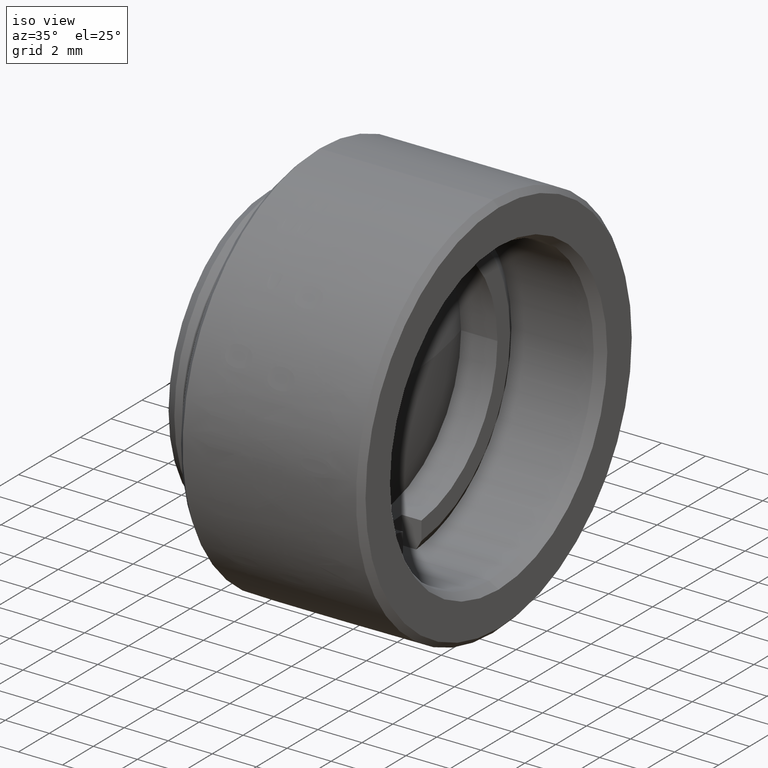
[diagram: clean part render]
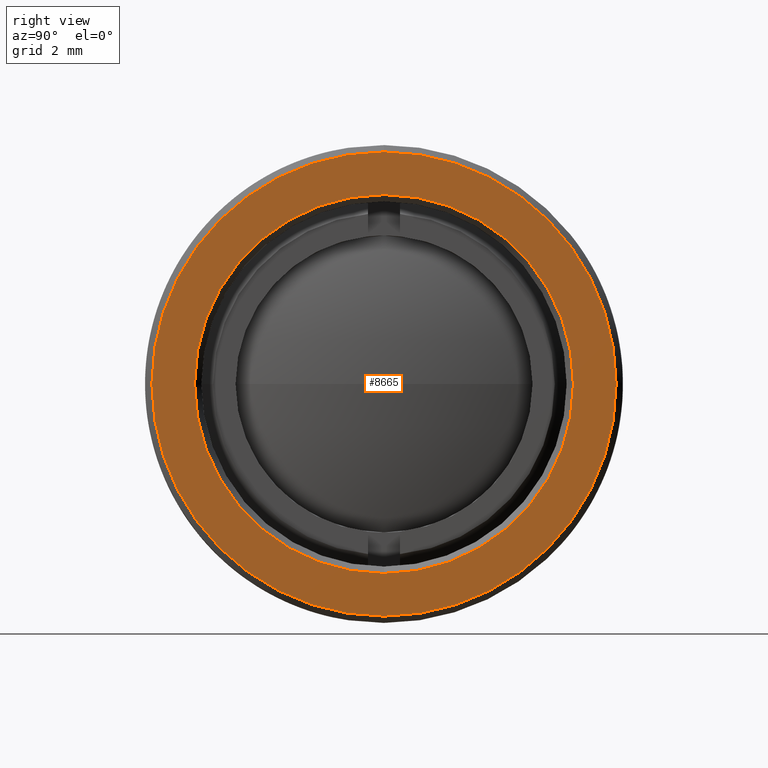
[diagram: tour spotlight — one face highlighted and labeled with its STEP entity id]
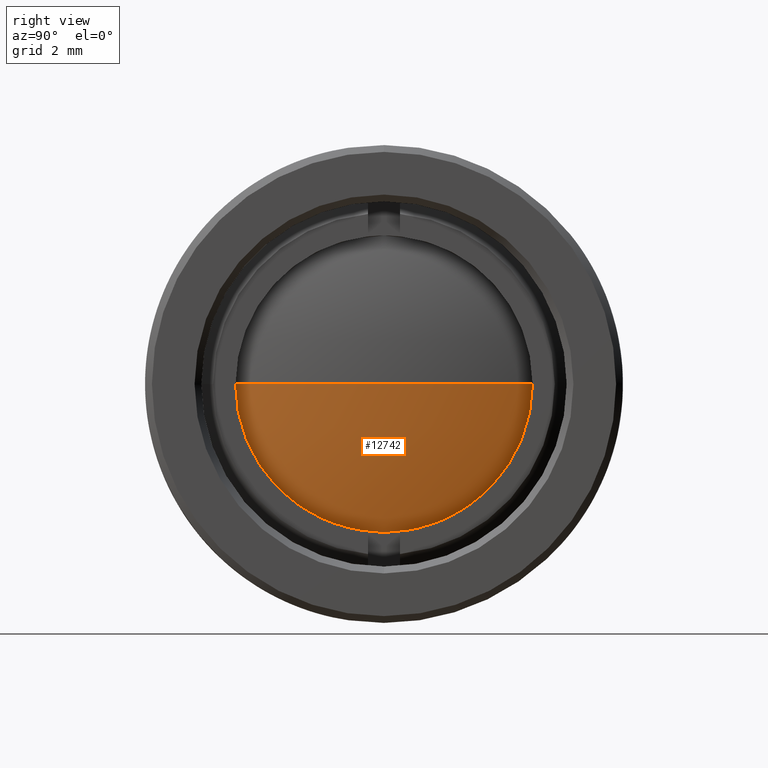
[diagram: tour spotlight — one face highlighted and labeled with its STEP entity id]
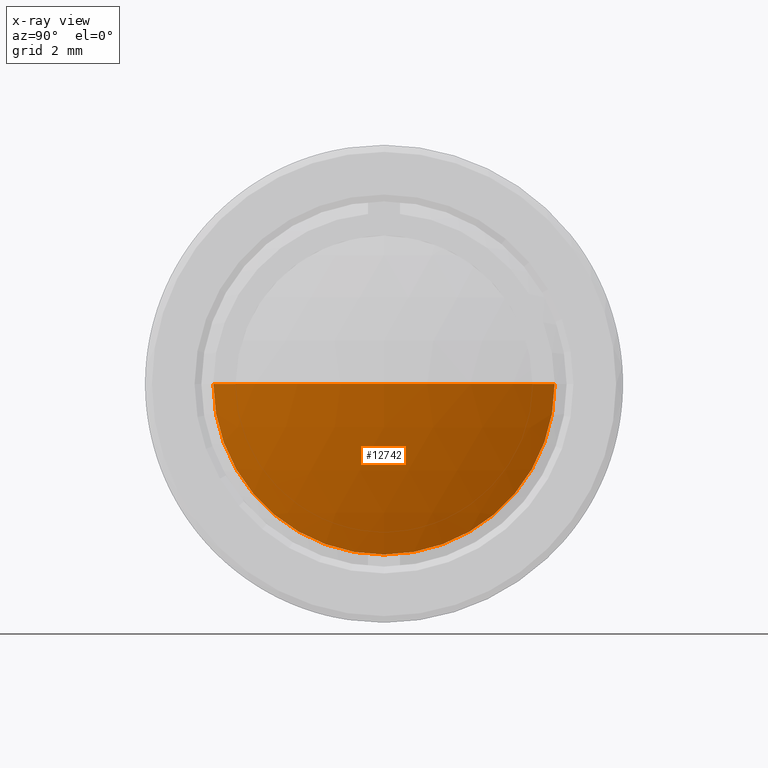
[diagram: x-ray of the same camera — body ghosted, this tour face saturated]
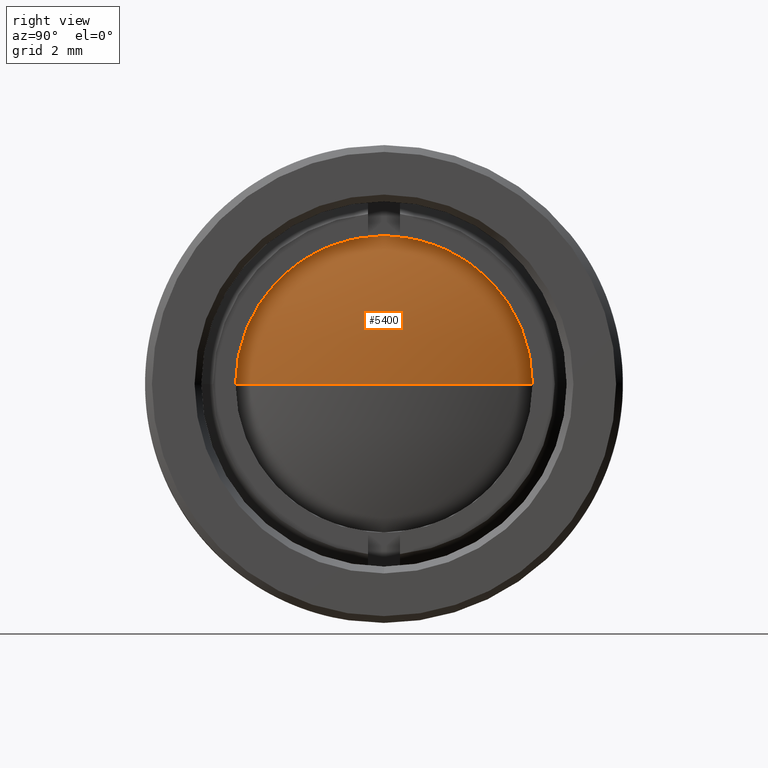
[diagram: tour spotlight — one face highlighted and labeled with its STEP entity id]
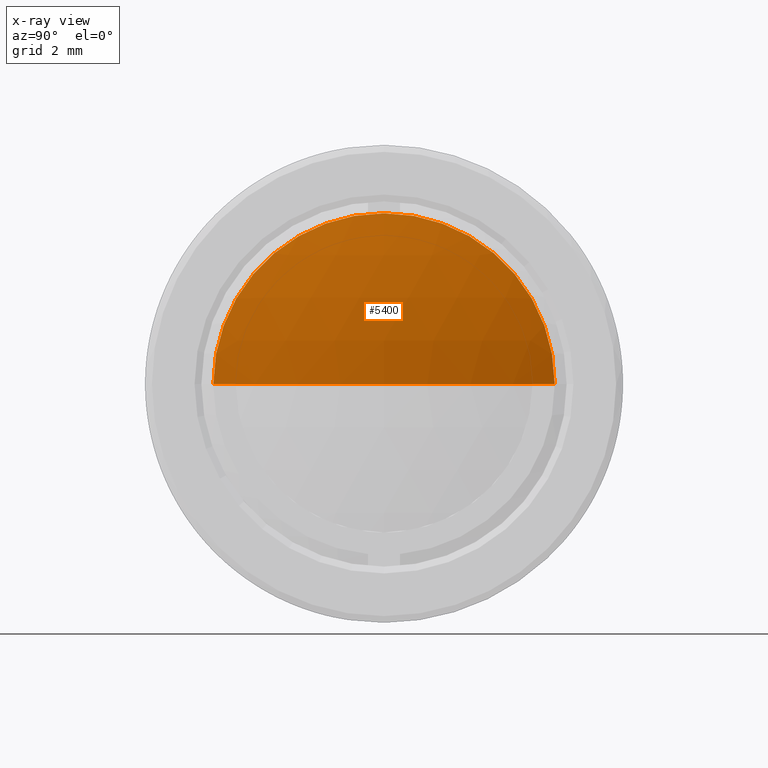
[diagram: x-ray of the same camera — body ghosted, this tour face saturated]
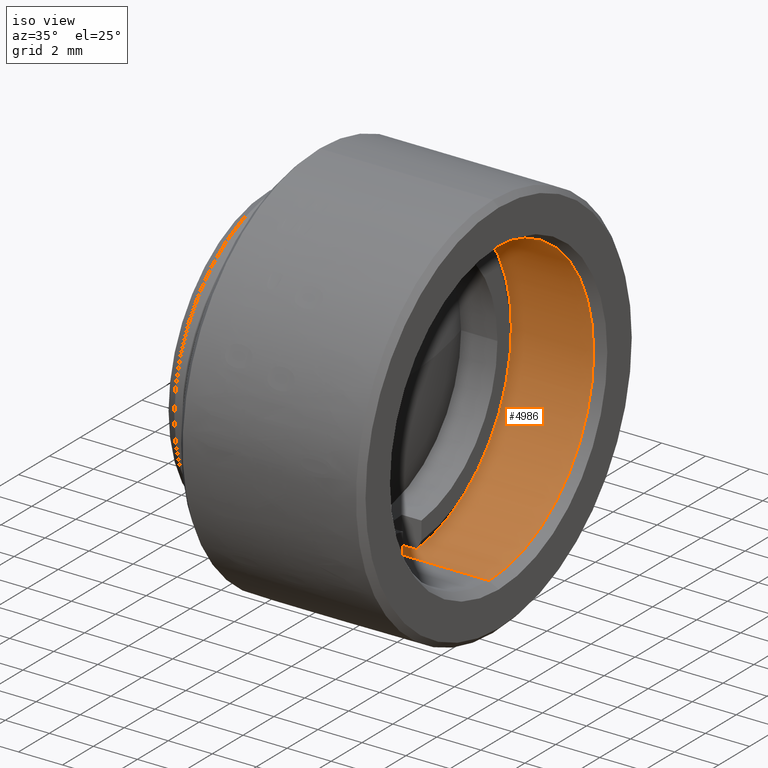
[diagram: tour spotlight — one face highlighted and labeled with its STEP entity id]
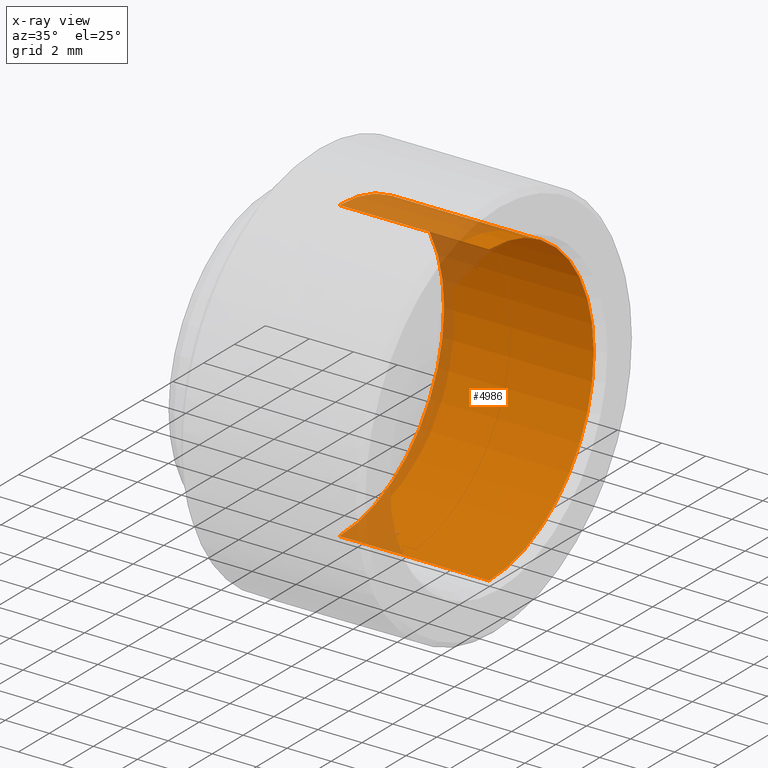
[diagram: x-ray of the same camera — body ghosted, this tour face saturated]
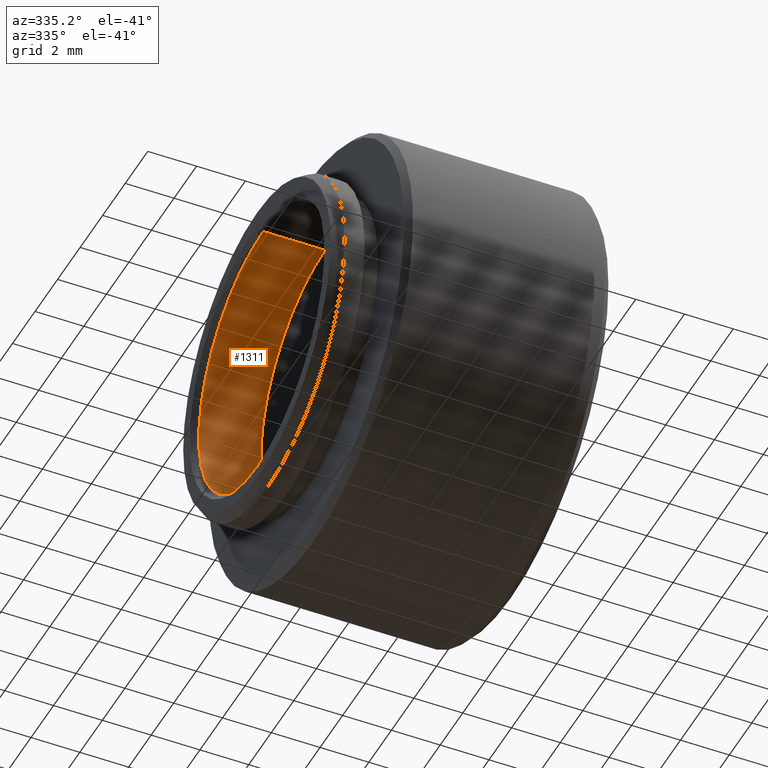
[diagram: tour spotlight — one face highlighted and labeled with its STEP entity id]
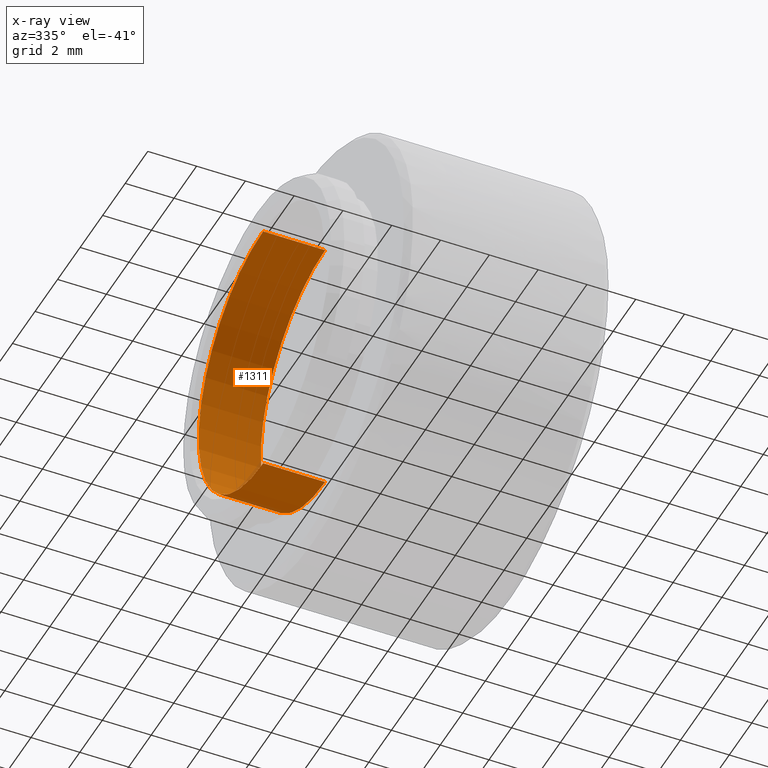
[diagram: x-ray of the same camera — body ghosted, this tour face saturated]
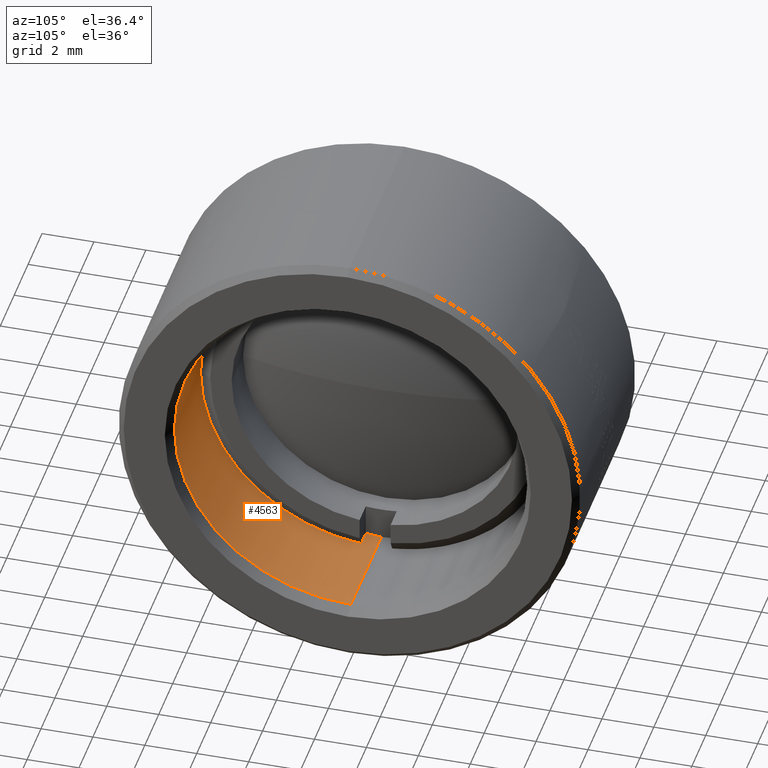
[diagram: tour spotlight — one face highlighted and labeled with its STEP entity id]
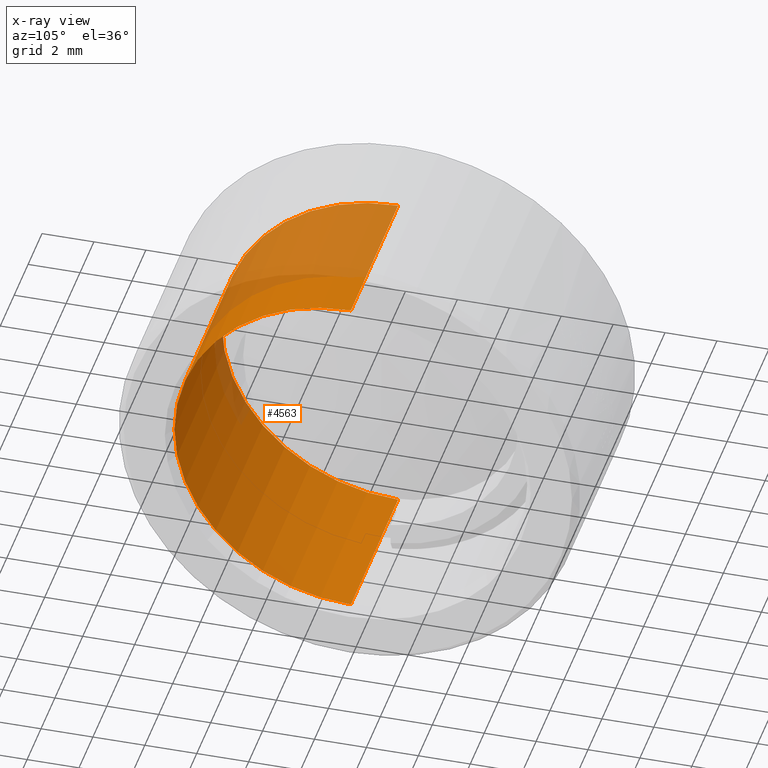
[diagram: x-ray of the same camera — body ghosted, this tour face saturated]
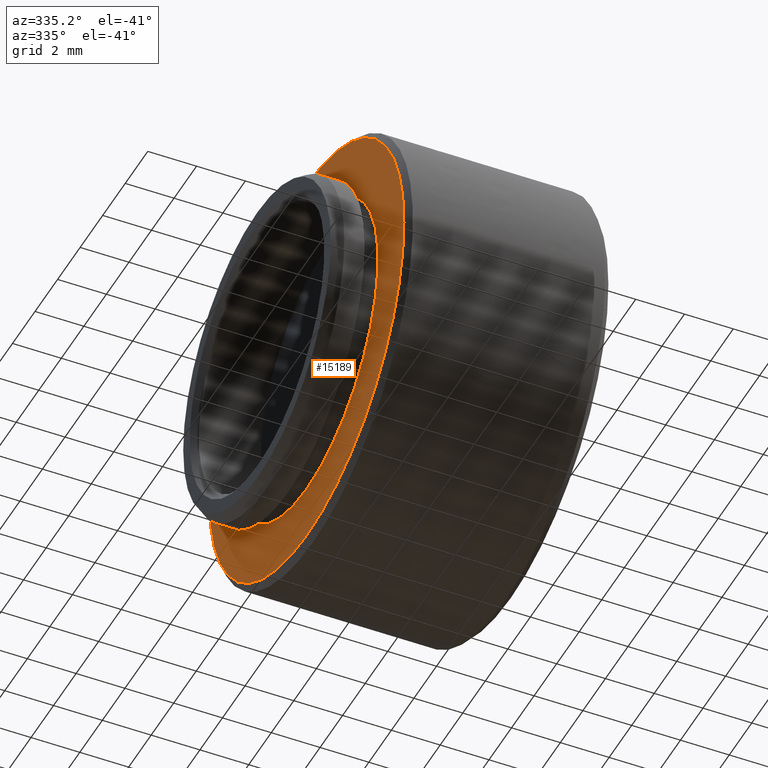
[diagram: tour spotlight — one face highlighted and labeled with its STEP entity id]
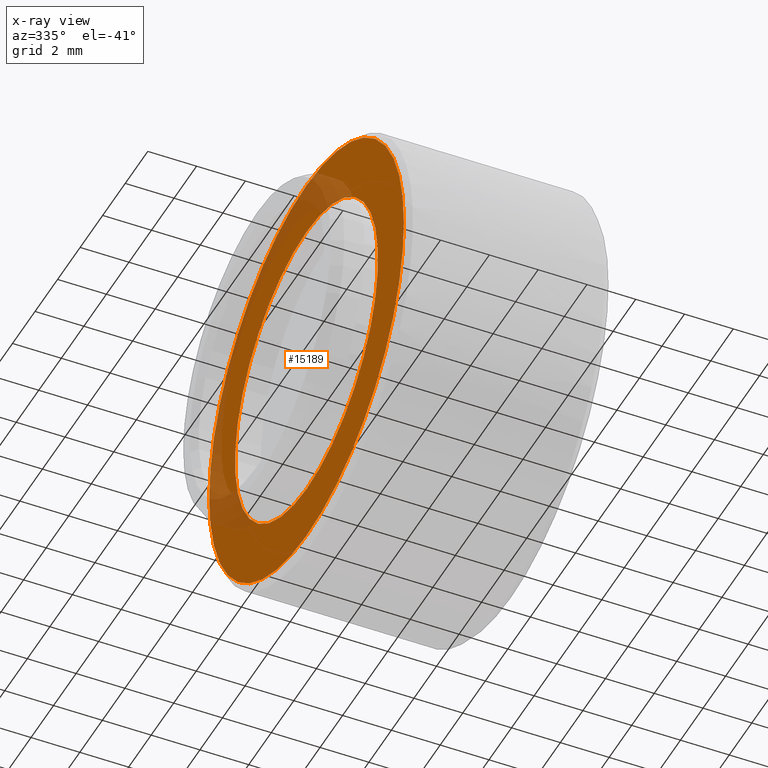
[diagram: x-ray of the same camera — body ghosted, this tour face saturated]
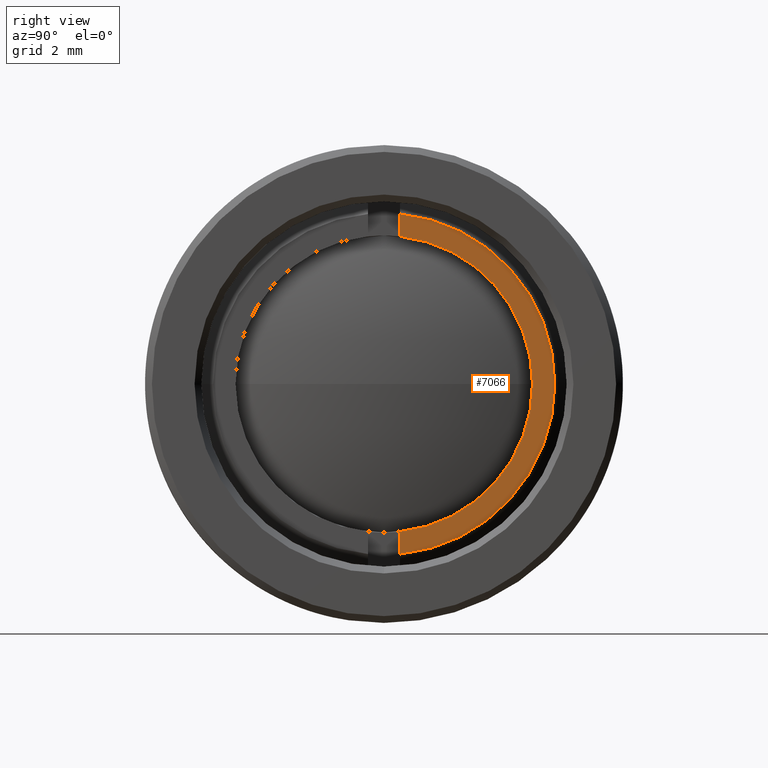
[diagram: tour spotlight — one face highlighted and labeled with its STEP entity id]
A machine part: a face-by-face anatomy tour. The part has 277 B-rep faces; the first image is the clean iso view, then the 8 largest visible faces are spotlighted one at a time (largest first), each with its STEP entity span.

Face 1 — right view, entity #8665. In plain terms, the highlighted planar face has unit normal (1, 0, -0).
Definition (entity closure, byte-faithful):
#58 = ORIENTED_EDGE ( 'NONE', *, *, #12486, .T. ) ;
#310 = AXIS2_PLACEMENT_3D ( 'NONE', #17529, #9246, #976 ) ;
#732 = CIRCLE ( 'NONE', #11438, 0.3400000000000000800 ) ;
#976 = DIRECTION ( 'NONE',  ( 0.0000000000000000000, 0.0000000000000000000, -1.000000000000000000 ) ) ;
#1913 = EDGE_LOOP ( 'NONE', ( #12680, #5407 ) ) ;
#2589 = FACE_OUTER_BOUND ( 'NONE', #12751, .T. ) ;
#4861 = DIRECTION ( 'NONE',  ( 1.000000000000000000, -0.0000000000000000000, -0.0000000000000000000 ) ) ;
#5407 = ORIENTED_EDGE ( 'NONE', *, *, #13251, .T. ) ;
#5629 = DIRECTION ( 'NONE',  ( -1.000000000000000000, 0.0000000000000000000, 0.0000000000000000000 ) ) ;
#5909 = PLANE ( 'NONE',  #6185 ) ;
#6185 = AXIS2_PLACEMENT_3D ( 'NONE', #14315, #15728, #7413 ) ;
#7399 = VERTEX_POINT ( 'NONE', #14909 ) ;
#7413 = DIRECTION ( 'NONE',  ( -0.0000000000000000000, 0.0000000000000000000, -1.000000000000000000 ) ) ;
#7529 = CARTESIAN_POINT ( 'NONE',  ( 0.2050000000000000400, 0.0000000000000000000, 0.0000000000000000000 ) ) ;
#8132 = CIRCLE ( 'NONE', #13645, 0.2775000000000001900 ) ;
#8496 = ORIENTED_EDGE ( 'NONE', *, *, #17340, .T. ) ;
#8665 = ADVANCED_FACE ( 'NONE', ( #2589, #16849 ), #5909, .T. ) ;
#8919 = DIRECTION ( 'NONE',  ( 0.0000000000000000000, 0.0000000000000000000, -1.000000000000000000 ) ) ;
#9023 = CARTESIAN_POINT ( 'NONE',  ( 0.2050000000000000400, 4.225031457058368500E-017, -0.3400000000000000800 ) ) ;
#9246 = DIRECTION ( 'NONE',  ( -1.000000000000000000, 0.0000000000000000000, 0.0000000000000000000 ) ) ;
#9256 = VERTEX_POINT ( 'NONE', #9575 ) ;
#9575 = CARTESIAN_POINT ( 'NONE',  ( 0.2050000000000000400, 0.0000000000000000000, -0.2775000000000001900 ) ) ;
#11180 = AXIS2_PLACEMENT_3D ( 'NONE', #13164, #4861, #14529 ) ;
#11438 = AXIS2_PLACEMENT_3D ( 'NONE', #7529, #17224, #8919 ) ;
#12486 = EDGE_CURVE ( 'NONE', #14745, #17827, #17029, .T. ) ;
#12680 = ORIENTED_EDGE ( 'NONE', *, *, #13030, .T. ) ;
#12751 = EDGE_LOOP ( 'NONE', ( #58, #8496 ) ) ;
#13030 = EDGE_CURVE ( 'NONE', #9256, #7399, #8132, .T. ) ;
#13164 = CARTESIAN_POINT ( 'NONE',  ( 0.2050000000000000400, 0.0000000000000000000, 0.0000000000000000000 ) ) ;
#13251 = EDGE_CURVE ( 'NONE', #7399, #9256, #14202, .T. ) ;
#13645 = AXIS2_PLACEMENT_3D ( 'NONE', #13928, #5629, #15310 ) ;
#13928 = CARTESIAN_POINT ( 'NONE',  ( 0.2050000000000000400, 0.0000000000000000000, 0.0000000000000000000 ) ) ;
#14202 = CIRCLE ( 'NONE', #310, 0.2775000000000001900 ) ;
#14315 = CARTESIAN_POINT ( 'NONE',  ( 0.2050000000000000400, 0.3499999999999999800, 0.0000000000000000000 ) ) ;
#14529 = DIRECTION ( 'NONE',  ( 0.0000000000000000000, 0.0000000000000000000, -1.000000000000000000 ) ) ;
#14745 = VERTEX_POINT ( 'NONE', #17343 ) ;
#14909 = CARTESIAN_POINT ( 'NONE',  ( 0.2050000000000000400, 3.398394867633907500E-017, 0.2775000000000001900 ) ) ;
#15310 = DIRECTION ( 'NONE',  ( 0.0000000000000000000, 0.0000000000000000000, -1.000000000000000000 ) ) ;
#15728 = DIRECTION ( 'NONE',  ( 1.000000000000000000, 0.0000000000000000000, -0.0000000000000000000 ) ) ;
#16849 = FACE_BOUND ( 'NONE', #1913, .T. ) ;
#17029 = CIRCLE ( 'NONE', #11180, 0.3400000000000000800 ) ;
#17224 = DIRECTION ( 'NONE',  ( 1.000000000000000000, -0.0000000000000000000, -0.0000000000000000000 ) ) ;
#17340 = EDGE_CURVE ( 'NONE', #17827, #14745, #732, .T. ) ;
#17343 = CARTESIAN_POINT ( 'NONE',  ( 0.2050000000000000400, 0.0000000000000000000, 0.3400000000000000800 ) ) ;
#17529 = CARTESIAN_POINT ( 'NONE',  ( 0.2050000000000000400, 0.0000000000000000000, 0.0000000000000000000 ) ) ;
#17827 = VERTEX_POINT ( 'NONE', #9023 ) ;

Face 2 — right view, entity #12742. An x-ray twin of the same camera follows (body ghosted, this face saturated) — the face is partly hidden behind the body. In plain terms, the highlighted spherical surface has radius 20.6 mm.
Definition (entity closure, byte-faithful):
#710 = CARTESIAN_POINT ( 'NONE',  ( -0.02425689957333913500, 2.489498125257398800E-017, -0.2500000000000000600 ) ) ;
#722 = ORIENTED_EDGE ( 'NONE', *, *, #10444, .T. ) ;
#951 = CARTESIAN_POINT ( 'NONE',  ( -0.02425689957333913500, 0.2500000000000002200, -3.061616997868385500E-017 ) ) ;
#1225 = CARTESIAN_POINT ( 'NONE',  ( -0.7957874015748031000, 0.0000000000000000000, 0.0000000000000000000 ) ) ;
#1467 = CIRCLE ( 'NONE', #4120, 0.8110236220472441000 ) ;
#1799 = DIRECTION ( 'NONE',  ( 0.0000000000000000000, -1.000000000000000000, 0.0000000000000000000 ) ) ;
#2376 = DIRECTION ( 'NONE',  ( -0.0000000000000000000, 0.0000000000000000000, 1.000000000000000000 ) ) ;
#2613 = DIRECTION ( 'NONE',  ( 0.0000000000000000000, 1.000000000000000000, -1.224646799147353200E-016 ) ) ;
#3128 = CARTESIAN_POINT ( 'NONE',  ( -0.7957874015748031000, 0.0000000000000000000, 0.0000000000000000000 ) ) ;
#3921 = VERTEX_POINT ( 'NONE', #710 ) ;
#4120 = AXIS2_PLACEMENT_3D ( 'NONE', #1225, #10874, #2613 ) ;
#4872 = VERTEX_POINT ( 'NONE', #12402 ) ;
#5285 = AXIS2_PLACEMENT_3D ( 'NONE', #3128, #10071, #1799 ) ;
#5390 = DIRECTION ( 'NONE',  ( 1.000000000000000000, 0.0000000000000000000, 0.0000000000000000000 ) ) ;
#6094 = AXIS2_PLACEMENT_3D ( 'NONE', #10629, #2376, #12032 ) ;
#6096 = ORIENTED_EDGE ( 'NONE', *, *, #14214, .F. ) ;
#6642 = ORIENTED_EDGE ( 'NONE', *, *, #11783, .T. ) ;
#7917 = SPHERICAL_SURFACE ( 'NONE', #5285, 0.8110236220472441000 ) ;
#7985 = DIRECTION ( 'NONE',  ( 1.000000000000000000, 0.0000000000000000000, 0.0000000000000000000 ) ) ;
#8263 = EDGE_CURVE ( 'NONE', #3921, #10397, #17112, .T. ) ;
#8604 = CIRCLE ( 'NONE', #9775, 0.2500000000000001100 ) ;
#9775 = AXIS2_PLACEMENT_3D ( 'NONE', #16307, #7985, #17688 ) ;
#10071 = DIRECTION ( 'NONE',  ( 0.0000000000000000000, 0.0000000000000000000, -1.000000000000000000 ) ) ;
#10397 = VERTEX_POINT ( 'NONE', #951 ) ;
#10444 = EDGE_CURVE ( 'NONE', #4872, #3921, #8604, .T. ) ;
#10629 = CARTESIAN_POINT ( 'NONE',  ( -0.7957874015748031000, 0.0000000000000000000, 0.0000000000000000000 ) ) ;
#10874 = DIRECTION ( 'NONE',  ( 0.0000000000000000000, -1.224646799147353200E-016, -1.000000000000000000 ) ) ;
#11178 = CARTESIAN_POINT ( 'NONE',  ( 0.01523622047244102000, -4.966087413865251400E-017, 0.0000000000000000000 ) ) ;
#11347 = VERTEX_POINT ( 'NONE', #11178 ) ;
#11551 = ORIENTED_EDGE ( 'NONE', *, *, #8263, .T. ) ;
#11783 = EDGE_CURVE ( 'NONE', #10397, #11347, #1467, .T. ) ;
#12032 = DIRECTION ( 'NONE',  ( 1.000000000000000000, 0.0000000000000000000, 0.0000000000000000000 ) ) ;
#12240 = CIRCLE ( 'NONE', #6094, 0.8110236220472441000 ) ;
#12402 = CARTESIAN_POINT ( 'NONE',  ( -0.02425689957333913500, -0.2500000000000002200, 0.0000000000000000000 ) ) ;
#12742 = ADVANCED_FACE ( 'NONE', ( #17675 ), #7917, .T. ) ;
#13681 = CARTESIAN_POINT ( 'NONE',  ( -0.02425689957333913500, 0.0000000000000000000, 0.0000000000000000000 ) ) ;
#14214 = EDGE_CURVE ( 'NONE', #4872, #11347, #12240, .T. ) ;
#15048 = EDGE_LOOP ( 'NONE', ( #722, #11551, #6642, #6096 ) ) ;
#15060 = DIRECTION ( 'NONE',  ( 0.0000000000000000000, -2.220446049250312600E-016, 1.000000000000000000 ) ) ;
#16307 = CARTESIAN_POINT ( 'NONE',  ( -0.02425689957333913500, 0.0000000000000000000, 0.0000000000000000000 ) ) ;
#17070 = AXIS2_PLACEMENT_3D ( 'NONE', #13681, #5390, #15060 ) ;
#17112 = CIRCLE ( 'NONE', #17070, 0.2500000000000001100 ) ;
#17675 = FACE_OUTER_BOUND ( 'NONE', #15048, .T. ) ;
#17688 = DIRECTION ( 'NONE',  ( 0.0000000000000000000, -2.220446049250312600E-016, 1.000000000000000000 ) ) ;

Face 3 — right view, entity #5400. An x-ray twin of the same camera follows (body ghosted, this face saturated) — the face is partly hidden behind the body. In plain terms, the highlighted spherical surface has radius 20.6 mm.
Definition (entity closure, byte-faithful):
#89 = FACE_OUTER_BOUND ( 'NONE', #797, .T. ) ;
#517 = SPHERICAL_SURFACE ( 'NONE', #5804, 0.8110236220472441000 ) ;
#797 = EDGE_LOOP ( 'NONE', ( #9106, #8052, #12663, #1360 ) ) ;
#951 = CARTESIAN_POINT ( 'NONE',  ( -0.02425689957333913500, 0.2500000000000002200, -3.061616997868385500E-017 ) ) ;
#1225 = CARTESIAN_POINT ( 'NONE',  ( -0.7957874015748031000, 0.0000000000000000000, 0.0000000000000000000 ) ) ;
#1360 = ORIENTED_EDGE ( 'NONE', *, *, #14214, .T. ) ;
#1467 = CIRCLE ( 'NONE', #4120, 0.8110236220472441000 ) ;
#1545 = CARTESIAN_POINT ( 'NONE',  ( -0.02425689957333913500, 0.0000000000000000000, 0.0000000000000000000 ) ) ;
#2376 = DIRECTION ( 'NONE',  ( -0.0000000000000000000, 0.0000000000000000000, 1.000000000000000000 ) ) ;
#2613 = DIRECTION ( 'NONE',  ( 0.0000000000000000000, 1.000000000000000000, -1.224646799147353200E-016 ) ) ;
#2945 = DIRECTION ( 'NONE',  ( 0.0000000000000000000, -2.220446049250312600E-016, 1.000000000000000000 ) ) ;
#4048 = CIRCLE ( 'NONE', #15244, 0.2500000000000001100 ) ;
#4120 = AXIS2_PLACEMENT_3D ( 'NONE', #1225, #10874, #2613 ) ;
#4646 = DIRECTION ( 'NONE',  ( 1.000000000000000000, 0.0000000000000000000, 0.0000000000000000000 ) ) ;
#4872 = VERTEX_POINT ( 'NONE', #12402 ) ;
#5400 = ADVANCED_FACE ( 'NONE', ( #89 ), #517, .T. ) ;
#5804 = AXIS2_PLACEMENT_3D ( 'NONE', #10424, #6265, #11819 ) ;
#6094 = AXIS2_PLACEMENT_3D ( 'NONE', #10629, #2376, #12032 ) ;
#6265 = DIRECTION ( 'NONE',  ( 0.0000000000000000000, 0.0000000000000000000, -1.000000000000000000 ) ) ;
#8052 = ORIENTED_EDGE ( 'NONE', *, *, #12260, .T. ) ;
#8468 = EDGE_CURVE ( 'NONE', #9154, #4872, #8877, .T. ) ;
#8877 = CIRCLE ( 'NONE', #9311, 0.2500000000000001100 ) ;
#9106 = ORIENTED_EDGE ( 'NONE', *, *, #11783, .F. ) ;
#9154 = VERTEX_POINT ( 'NONE', #14782 ) ;
#9311 = AXIS2_PLACEMENT_3D ( 'NONE', #12936, #4646, #14313 ) ;
#10397 = VERTEX_POINT ( 'NONE', #951 ) ;
#10424 = CARTESIAN_POINT ( 'NONE',  ( -0.7957874015748031000, 0.0000000000000000000, 0.0000000000000000000 ) ) ;
#10629 = CARTESIAN_POINT ( 'NONE',  ( -0.7957874015748031000, 0.0000000000000000000, 0.0000000000000000000 ) ) ;
#10874 = DIRECTION ( 'NONE',  ( 0.0000000000000000000, -1.224646799147353200E-016, -1.000000000000000000 ) ) ;
#11178 = CARTESIAN_POINT ( 'NONE',  ( 0.01523622047244102000, -4.966087413865251400E-017, 0.0000000000000000000 ) ) ;
#11211 = DIRECTION ( 'NONE',  ( 1.000000000000000000, 0.0000000000000000000, 0.0000000000000000000 ) ) ;
#11347 = VERTEX_POINT ( 'NONE', #11178 ) ;
#11783 = EDGE_CURVE ( 'NONE', #10397, #11347, #1467, .T. ) ;
#11819 = DIRECTION ( 'NONE',  ( 0.0000000000000000000, -1.000000000000000000, 0.0000000000000000000 ) ) ;
#12032 = DIRECTION ( 'NONE',  ( 1.000000000000000000, 0.0000000000000000000, 0.0000000000000000000 ) ) ;
#12240 = CIRCLE ( 'NONE', #6094, 0.8110236220472441000 ) ;
#12260 = EDGE_CURVE ( 'NONE', #10397, #9154, #4048, .T. ) ;
#12402 = CARTESIAN_POINT ( 'NONE',  ( -0.02425689957333913500, -0.2500000000000002200, 0.0000000000000000000 ) ) ;
#12663 = ORIENTED_EDGE ( 'NONE', *, *, #8468, .T. ) ;
#12936 = CARTESIAN_POINT ( 'NONE',  ( -0.02425689957333913500, 0.0000000000000000000, 0.0000000000000000000 ) ) ;
#14214 = EDGE_CURVE ( 'NONE', #4872, #11347, #12240, .T. ) ;
#14313 = DIRECTION ( 'NONE',  ( 0.0000000000000000000, -2.220446049250312600E-016, 1.000000000000000000 ) ) ;
#14782 = CARTESIAN_POINT ( 'NONE',  ( -0.02425689957333913500, -5.551115123125782700E-017, 0.2500000000000000600 ) ) ;
#15244 = AXIS2_PLACEMENT_3D ( 'NONE', #1545, #11211, #2945 ) ;

Face 4 — iso view, entity #4986. An x-ray twin of the same camera follows (body ghosted, this face saturated) — the face is partly hidden behind the body. In plain terms, the highlighted cylindrical surface (partial cylindrical patch) has radius 6.7945 mm, axis along (1, -0, -0).
Definition (entity closure, byte-faithful):
#109 = CYLINDRICAL_SURFACE ( 'NONE', #8925, 0.2675000000000000200 ) ;
#141 = CARTESIAN_POINT ( 'NONE',  ( 0.2050000000000000400, 0.0000000000000000000, 0.0000000000000000000 ) ) ;
#171 = CARTESIAN_POINT ( 'NONE',  ( 0.1876794919243109400, 3.275930187719170000E-017, 0.2675000000000000200 ) ) ;
#1982 = CARTESIAN_POINT ( 'NONE',  ( 0.2050000000000000400, 0.0000000000000000000, -0.2675000000000000200 ) ) ;
#2310 = EDGE_LOOP ( 'NONE', ( #9455, #16572, #14114, #6759 ) ) ;
#2705 = CARTESIAN_POINT ( 'NONE',  ( 0.1876794919243109400, 0.0000000000000000000, 0.0000000000000000000 ) ) ;
#3272 = EDGE_CURVE ( 'NONE', #8558, #8965, #11800, .T. ) ;
#3364 = DIRECTION ( 'NONE',  ( 1.000000000000000000, -0.0000000000000000000, -0.0000000000000000000 ) ) ;
#4088 = DIRECTION ( 'NONE',  ( 0.0000000000000000000, 0.0000000000000000000, -1.000000000000000000 ) ) ;
#4092 = EDGE_CURVE ( 'NONE', #7568, #7174, #6618, .T. ) ;
#4986 = ADVANCED_FACE ( 'NONE', ( #7873 ), #109, .F. ) ;
#5527 = VECTOR ( 'NONE', #5905, 39.37007874015748100 ) ;
#5625 = DIRECTION ( 'NONE',  ( 0.0000000000000000000, 0.0000000000000000000, -1.000000000000000000 ) ) ;
#5836 = CARTESIAN_POINT ( 'NONE',  ( -0.07999999999999990500, 3.275930187719170000E-017, 0.2675000000000000200 ) ) ;
#5905 = DIRECTION ( 'NONE',  ( 1.000000000000000000, -0.0000000000000000000, -0.0000000000000000000 ) ) ;
#6390 = LINE ( 'NONE', #10086, #5527 ) ;
#6613 = AXIS2_PLACEMENT_3D ( 'NONE', #2705, #12362, #4088 ) ;
#6618 = CIRCLE ( 'NONE', #6613, 0.2675000000000000200 ) ;
#6759 = ORIENTED_EDGE ( 'NONE', *, *, #4092, .T. ) ;
#7174 = VERTEX_POINT ( 'NONE', #171 ) ;
#7379 = CARTESIAN_POINT ( 'NONE',  ( -0.07999999999999990500, 0.0000000000000000000, 0.0000000000000000000 ) ) ;
#7568 = VERTEX_POINT ( 'NONE', #11145 ) ;
#7873 = FACE_OUTER_BOUND ( 'NONE', #2310, .T. ) ;
#8558 = VERTEX_POINT ( 'NONE', #14435 ) ;
#8768 = DIRECTION ( 'NONE',  ( 0.0000000000000000000, 0.0000000000000000000, -1.000000000000000000 ) ) ;
#8925 = AXIS2_PLACEMENT_3D ( 'NONE', #141, #9794, #5625 ) ;
#8965 = VERTEX_POINT ( 'NONE', #5836 ) ;
#9455 = ORIENTED_EDGE ( 'NONE', *, *, #14544, .F. ) ;
#9794 = DIRECTION ( 'NONE',  ( 1.000000000000000000, -0.0000000000000000000, -0.0000000000000000000 ) ) ;
#9876 = LINE ( 'NONE', #1982, #16803 ) ;
#10086 = CARTESIAN_POINT ( 'NONE',  ( 0.2050000000000000400, 3.275930187719170000E-017, 0.2675000000000000200 ) ) ;
#11145 = CARTESIAN_POINT ( 'NONE',  ( 0.1876794919243109400, 0.0000000000000000000, -0.2675000000000000200 ) ) ;
#11800 = CIRCLE ( 'NONE', #16581, 0.2675000000000000200 ) ;
#12362 = DIRECTION ( 'NONE',  ( 1.000000000000000000, 0.0000000000000000000, 0.0000000000000000000 ) ) ;
#12805 = EDGE_CURVE ( 'NONE', #8558, #7568, #9876, .T. ) ;
#14114 = ORIENTED_EDGE ( 'NONE', *, *, #12805, .T. ) ;
#14435 = CARTESIAN_POINT ( 'NONE',  ( -0.07999999999999990500, 0.0000000000000000000, -0.2675000000000000200 ) ) ;
#14544 = EDGE_CURVE ( 'NONE', #8965, #7174, #6390, .T. ) ;
#16572 = ORIENTED_EDGE ( 'NONE', *, *, #3272, .F. ) ;
#16581 = AXIS2_PLACEMENT_3D ( 'NONE', #7379, #17068, #8768 ) ;
#16803 = VECTOR ( 'NONE', #3364, 39.37007874015748100 ) ;
#17068 = DIRECTION ( 'NONE',  ( 1.000000000000000000, -0.0000000000000000000, -0.0000000000000000000 ) ) ;

Face 5 — auxiliary view, entity #1311. An x-ray twin of the same camera follows (body ghosted, this face saturated) — the face is partly hidden behind the body. In plain terms, the highlighted cylindrical surface (partial cylindrical patch) has radius 5.715 mm, axis along (1, -0, -0).
Definition (entity closure, byte-faithful):
#257 = LINE ( 'NONE', #6559, #10850 ) ;
#859 = EDGE_LOOP ( 'NONE', ( #8428, #6038, #15245, #3751 ) ) ;
#1311 = ADVANCED_FACE ( 'NONE', ( #1730 ), #4959, .F. ) ;
#1363 = EDGE_CURVE ( 'NONE', #13920, #3991, #15565, .T. ) ;
#1730 = FACE_OUTER_BOUND ( 'NONE', #859, .T. ) ;
#2354 = CARTESIAN_POINT ( 'NONE',  ( -0.09499999999999990400, 0.0000000000000000000, -0.2249999999999999800 ) ) ;
#2753 = CARTESIAN_POINT ( 'NONE',  ( -0.1949999999999999200, 2.755455298081544500E-017, 0.2249999999999999800 ) ) ;
#2759 = DIRECTION ( 'NONE',  ( 1.000000000000000000, -0.0000000000000000000, -0.0000000000000000000 ) ) ;
#3712 = DIRECTION ( 'NONE',  ( 1.000000000000000000, -0.0000000000000000000, -0.0000000000000000000 ) ) ;
#3751 = ORIENTED_EDGE ( 'NONE', *, *, #10995, .T. ) ;
#3991 = VERTEX_POINT ( 'NONE', #2354 ) ;
#4612 = CARTESIAN_POINT ( 'NONE',  ( -0.09499999999999990400, 0.0000000000000000000, 0.0000000000000000000 ) ) ;
#4720 = CIRCLE ( 'NONE', #10359, 0.2249999999999999800 ) ;
#4959 = CYLINDRICAL_SURFACE ( 'NONE', #12372, 0.2249999999999999800 ) ;
#5999 = DIRECTION ( 'NONE',  ( 0.0000000000000000000, 0.0000000000000000000, -1.000000000000000000 ) ) ;
#6038 = ORIENTED_EDGE ( 'NONE', *, *, #13899, .T. ) ;
#6267 = CARTESIAN_POINT ( 'NONE',  ( -0.09499999999999990400, 2.755455298081544500E-017, 0.2249999999999999800 ) ) ;
#6559 = CARTESIAN_POINT ( 'NONE',  ( 0.2050000000000000400, 2.755455298081544500E-017, 0.2249999999999999800 ) ) ;
#7262 = VERTEX_POINT ( 'NONE', #6267 ) ;
#7757 = EDGE_CURVE ( 'NONE', #13940, #7262, #257, .T. ) ;
#8111 = DIRECTION ( 'NONE',  ( -1.000000000000000000, -0.0000000000000000000, -0.0000000000000000000 ) ) ;
#8428 = ORIENTED_EDGE ( 'NONE', *, *, #7757, .F. ) ;
#8527 = DIRECTION ( 'NONE',  ( 1.000000000000000000, -0.0000000000000000000, -0.0000000000000000000 ) ) ;
#9231 = AXIS2_PLACEMENT_3D ( 'NONE', #16435, #8111, #17793 ) ;
#9690 = CARTESIAN_POINT ( 'NONE',  ( 0.2050000000000000400, 0.0000000000000000000, 0.0000000000000000000 ) ) ;
#9856 = CIRCLE ( 'NONE', #9231, 0.2249999999999999800 ) ;
#10359 = AXIS2_PLACEMENT_3D ( 'NONE', #4612, #14282, #5999 ) ;
#10850 = VECTOR ( 'NONE', #3712, 39.37007874015748100 ) ;
#10995 = EDGE_CURVE ( 'NONE', #3991, #7262, #4720, .T. ) ;
#11875 = VECTOR ( 'NONE', #8527, 39.37007874015748100 ) ;
#12294 = CARTESIAN_POINT ( 'NONE',  ( -0.1949999999999999200, 0.0000000000000000000, -0.2249999999999999800 ) ) ;
#12372 = AXIS2_PLACEMENT_3D ( 'NONE', #9690, #2759, #16602 ) ;
#13899 = EDGE_CURVE ( 'NONE', #13940, #13920, #9856, .T. ) ;
#13920 = VERTEX_POINT ( 'NONE', #12294 ) ;
#13940 = VERTEX_POINT ( 'NONE', #2753 ) ;
#14053 = CARTESIAN_POINT ( 'NONE',  ( 0.2050000000000000400, 0.0000000000000000000, -0.2249999999999999800 ) ) ;
#14282 = DIRECTION ( 'NONE',  ( 1.000000000000000000, -0.0000000000000000000, -0.0000000000000000000 ) ) ;
#15245 = ORIENTED_EDGE ( 'NONE', *, *, #1363, .T. ) ;
#15565 = LINE ( 'NONE', #14053, #11875 ) ;
#16435 = CARTESIAN_POINT ( 'NONE',  ( -0.1949999999999999200, 0.0000000000000000000, 0.0000000000000000000 ) ) ;
#16602 = DIRECTION ( 'NONE',  ( 0.0000000000000000000, 0.0000000000000000000, -1.000000000000000000 ) ) ;
#17793 = DIRECTION ( 'NONE',  ( 0.0000000000000000000, 0.0000000000000000000, 1.000000000000000000 ) ) ;

Face 6 — auxiliary view, entity #4563. An x-ray twin of the same camera follows (body ghosted, this face saturated) — the face is partly hidden behind the body. In plain terms, the highlighted cylindrical surface (partial cylindrical patch) has radius 6.7945 mm, axis along (1, -0, -0).
Definition (entity closure, byte-faithful):
#171 = CARTESIAN_POINT ( 'NONE',  ( 0.1876794919243109400, 3.275930187719170000E-017, 0.2675000000000000200 ) ) ;
#1982 = CARTESIAN_POINT ( 'NONE',  ( 0.2050000000000000400, 0.0000000000000000000, -0.2675000000000000200 ) ) ;
#2313 = CIRCLE ( 'NONE', #13297, 0.2675000000000000200 ) ;
#2713 = CYLINDRICAL_SURFACE ( 'NONE', #14852, 0.2675000000000000200 ) ;
#3364 = DIRECTION ( 'NONE',  ( 1.000000000000000000, -0.0000000000000000000, -0.0000000000000000000 ) ) ;
#3532 = EDGE_CURVE ( 'NONE', #7174, #7568, #13340, .T. ) ;
#4563 = ADVANCED_FACE ( 'NONE', ( #10059 ), #2713, .F. ) ;
#4693 = CARTESIAN_POINT ( 'NONE',  ( -0.07999999999999990500, 0.0000000000000000000, 0.0000000000000000000 ) ) ;
#5527 = VECTOR ( 'NONE', #5905, 39.37007874015748100 ) ;
#5796 = EDGE_LOOP ( 'NONE', ( #12950, #14304, #13758, #8635 ) ) ;
#5836 = CARTESIAN_POINT ( 'NONE',  ( -0.07999999999999990500, 3.275930187719170000E-017, 0.2675000000000000200 ) ) ;
#5905 = DIRECTION ( 'NONE',  ( 1.000000000000000000, -0.0000000000000000000, -0.0000000000000000000 ) ) ;
#6071 = DIRECTION ( 'NONE',  ( 0.0000000000000000000, 0.0000000000000000000, -1.000000000000000000 ) ) ;
#6390 = LINE ( 'NONE', #10086, #5527 ) ;
#7174 = VERTEX_POINT ( 'NONE', #171 ) ;
#7568 = VERTEX_POINT ( 'NONE', #11145 ) ;
#7854 = AXIS2_PLACEMENT_3D ( 'NONE', #7912, #17601, #9319 ) ;
#7912 = CARTESIAN_POINT ( 'NONE',  ( 0.1876794919243109400, 0.0000000000000000000, 0.0000000000000000000 ) ) ;
#8257 = DIRECTION ( 'NONE',  ( 0.0000000000000000000, 0.0000000000000000000, -1.000000000000000000 ) ) ;
#8558 = VERTEX_POINT ( 'NONE', #14435 ) ;
#8635 = ORIENTED_EDGE ( 'NONE', *, *, #12805, .F. ) ;
#8965 = VERTEX_POINT ( 'NONE', #5836 ) ;
#9319 = DIRECTION ( 'NONE',  ( 0.0000000000000000000, 0.0000000000000000000, -1.000000000000000000 ) ) ;
#9876 = LINE ( 'NONE', #1982, #16803 ) ;
#10059 = FACE_OUTER_BOUND ( 'NONE', #5796, .T. ) ;
#10086 = CARTESIAN_POINT ( 'NONE',  ( 0.2050000000000000400, 3.275930187719170000E-017, 0.2675000000000000200 ) ) ;
#11145 = CARTESIAN_POINT ( 'NONE',  ( 0.1876794919243109400, 0.0000000000000000000, -0.2675000000000000200 ) ) ;
#12328 = DIRECTION ( 'NONE',  ( 1.000000000000000000, -0.0000000000000000000, -0.0000000000000000000 ) ) ;
#12805 = EDGE_CURVE ( 'NONE', #8558, #7568, #9876, .T. ) ;
#12950 = ORIENTED_EDGE ( 'NONE', *, *, #13535, .F. ) ;
#13297 = AXIS2_PLACEMENT_3D ( 'NONE', #4693, #14356, #6071 ) ;
#13340 = CIRCLE ( 'NONE', #7854, 0.2675000000000000200 ) ;
#13535 = EDGE_CURVE ( 'NONE', #8965, #8558, #2313, .T. ) ;
#13758 = ORIENTED_EDGE ( 'NONE', *, *, #3532, .T. ) ;
#14304 = ORIENTED_EDGE ( 'NONE', *, *, #14544, .T. ) ;
#14356 = DIRECTION ( 'NONE',  ( 1.000000000000000000, -0.0000000000000000000, -0.0000000000000000000 ) ) ;
#14435 = CARTESIAN_POINT ( 'NONE',  ( -0.07999999999999990500, 0.0000000000000000000, -0.2675000000000000200 ) ) ;
#14544 = EDGE_CURVE ( 'NONE', #8965, #7174, #6390, .T. ) ;
#14852 = AXIS2_PLACEMENT_3D ( 'NONE', #16582, #12328, #8257 ) ;
#16582 = CARTESIAN_POINT ( 'NONE',  ( 0.2050000000000000400, 0.0000000000000000000, 0.0000000000000000000 ) ) ;
#16803 = VECTOR ( 'NONE', #3364, 39.37007874015748100 ) ;
#17601 = DIRECTION ( 'NONE',  ( 1.000000000000000000, 0.0000000000000000000, 0.0000000000000000000 ) ) ;

Face 7 — auxiliary view, entity #15189. An x-ray twin of the same camera follows (body ghosted, this face saturated) — the face is partly hidden behind the body. In plain terms, the highlighted planar face has unit normal (-1, 0, 0).
Definition (entity closure, byte-faithful):
#259 = CARTESIAN_POINT ( 'NONE',  ( -0.1250000000000001900, 0.0000000000000000000, 0.0000000000000000000 ) ) ;
#356 = CIRCLE ( 'NONE', #15484, 0.3399999999999995200 ) ;
#808 = DIRECTION ( 'NONE',  ( 1.000000000000000000, -0.0000000000000000000, -0.0000000000000000000 ) ) ;
#1098 = VERTEX_POINT ( 'NONE', #9588 ) ;
#1552 = AXIS2_PLACEMENT_3D ( 'NONE', #14554, #6278, #15976 ) ;
#2623 = AXIS2_PLACEMENT_3D ( 'NONE', #14829, #6545, #16236 ) ;
#3011 = CIRCLE ( 'NONE', #1552, 0.3399999999999995200 ) ;
#3266 = VERTEX_POINT ( 'NONE', #14119 ) ;
#3428 = CIRCLE ( 'NONE', #2623, 0.2494999999999999700 ) ;
#3448 = DIRECTION ( 'NONE',  ( 0.0000000000000000000, 0.0000000000000000000, 1.000000000000000000 ) ) ;
#4211 = CIRCLE ( 'NONE', #11536, 0.2494999999999999700 ) ;
#4741 = DIRECTION ( 'NONE',  ( -1.000000000000000000, 0.0000000000000000000, 0.0000000000000000000 ) ) ;
#4862 = FACE_BOUND ( 'NONE', #10832, .T. ) ;
#4908 = ORIENTED_EDGE ( 'NONE', *, *, #13154, .T. ) ;
#6278 = DIRECTION ( 'NONE',  ( -1.000000000000000000, 0.0000000000000000000, 0.0000000000000000000 ) ) ;
#6337 = CARTESIAN_POINT ( 'NONE',  ( -0.1250000000000002800, 0.0000000000000000000, -0.2494999999999999700 ) ) ;
#6545 = DIRECTION ( 'NONE',  ( 1.000000000000000000, -0.0000000000000000000, -0.0000000000000000000 ) ) ;
#7404 = CARTESIAN_POINT ( 'NONE',  ( -0.1250000000000001900, 0.0000000000000000000, -0.3399999999999995200 ) ) ;
#8048 = ORIENTED_EDGE ( 'NONE', *, *, #8596, .T. ) ;
#8187 = AXIS2_PLACEMENT_3D ( 'NONE', #13034, #4741, #14412 ) ;
#8596 = EDGE_CURVE ( 'NONE', #3266, #16050, #3011, .T. ) ;
#9069 = CARTESIAN_POINT ( 'NONE',  ( -0.1250000000000002800, 0.0000000000000000000, 0.0000000000000000000 ) ) ;
#9588 = CARTESIAN_POINT ( 'NONE',  ( -0.1250000000000002800, 3.055493763872645600E-017, 0.2494999999999999700 ) ) ;
#9931 = VERTEX_POINT ( 'NONE', #6337 ) ;
#10242 = PLANE ( 'NONE',  #8187 ) ;
#10451 = ORIENTED_EDGE ( 'NONE', *, *, #11163, .T. ) ;
#10459 = DIRECTION ( 'NONE',  ( 0.0000000000000000000, 0.0000000000000000000, -1.000000000000000000 ) ) ;
#10832 = EDGE_LOOP ( 'NONE', ( #12152, #10451 ) ) ;
#11163 = EDGE_CURVE ( 'NONE', #1098, #9931, #3428, .T. ) ;
#11536 = AXIS2_PLACEMENT_3D ( 'NONE', #9069, #808, #10459 ) ;
#11709 = DIRECTION ( 'NONE',  ( -1.000000000000000000, 0.0000000000000000000, 0.0000000000000000000 ) ) ;
#12152 = ORIENTED_EDGE ( 'NONE', *, *, #15684, .T. ) ;
#13034 = CARTESIAN_POINT ( 'NONE',  ( -0.1250000000000001900, 0.3499999999999998700, 0.0000000000000000000 ) ) ;
#13154 = EDGE_CURVE ( 'NONE', #16050, #3266, #356, .T. ) ;
#14119 = CARTESIAN_POINT ( 'NONE',  ( -0.1250000000000001900, 4.225031457058365400E-017, 0.3399999999999995200 ) ) ;
#14412 = DIRECTION ( 'NONE',  ( 0.0000000000000000000, 0.0000000000000000000, 1.000000000000000000 ) ) ;
#14554 = CARTESIAN_POINT ( 'NONE',  ( -0.1250000000000001900, 0.0000000000000000000, 0.0000000000000000000 ) ) ;
#14829 = CARTESIAN_POINT ( 'NONE',  ( -0.1250000000000002800, 0.0000000000000000000, 0.0000000000000000000 ) ) ;
#15002 = EDGE_LOOP ( 'NONE', ( #4908, #8048 ) ) ;
#15189 = ADVANCED_FACE ( 'NONE', ( #15467, #4862 ), #10242, .T. ) ;
#15467 = FACE_OUTER_BOUND ( 'NONE', #15002, .T. ) ;
#15484 = AXIS2_PLACEMENT_3D ( 'NONE', #259, #11709, #3448 ) ;
#15684 = EDGE_CURVE ( 'NONE', #9931, #1098, #4211, .T. ) ;
#15976 = DIRECTION ( 'NONE',  ( 0.0000000000000000000, 0.0000000000000000000, 1.000000000000000000 ) ) ;
#16050 = VERTEX_POINT ( 'NONE', #7404 ) ;
#16236 = DIRECTION ( 'NONE',  ( 0.0000000000000000000, 0.0000000000000000000, -1.000000000000000000 ) ) ;

Face 8 — right view, entity #7066. In plain terms, the highlighted planar face has unit normal (1, 0, 0).
Definition (entity closure, byte-faithful):
#131 = VERTEX_POINT ( 'NONE', #13990 ) ;
#766 = CARTESIAN_POINT ( 'NONE',  ( 0.05052755765651174200, 0.02349999999999988200, -0.2162267328523464800 ) ) ;
#918 = DIRECTION ( 'NONE',  ( 0.0000000000000000000, 1.699281587288270400E-016, 1.000000000000000000 ) ) ;
#1215 = CARTESIAN_POINT ( 'NONE',  ( 0.05052755765651174200, -8.003369327120431900E-018, 0.0000000000000000000 ) ) ;
#1263 = CARTESIAN_POINT ( 'NONE',  ( 0.05052755765651174200, 0.02349999999999998600, 0.2162267328523464800 ) ) ;
#1559 = CIRCLE ( 'NONE', #8136, 0.2175000000000000000 ) ;
#2059 = CARTESIAN_POINT ( 'NONE',  ( 0.05052755765651174200, 0.02349999999999999000, 0.2664657576500216200 ) ) ;
#2505 = VERTEX_POINT ( 'NONE', #5095 ) ;
#2663 = FACE_OUTER_BOUND ( 'NONE', #12806, .T. ) ;
#2858 = CARTESIAN_POINT ( 'NONE',  ( 0.05052755765651174200, -8.003369327120431900E-018, 0.0000000000000000000 ) ) ;
#3195 = EDGE_CURVE ( 'NONE', #2505, #12868, #8550, .T. ) ;
#3902 = EDGE_CURVE ( 'NONE', #16290, #8530, #4664, .T. ) ;
#4240 = DIRECTION ( 'NONE',  ( 0.0000000000000000000, 1.000000000000000000, 0.0000000000000000000 ) ) ;
#4664 = LINE ( 'NONE', #2059, #11143 ) ;
#4891 = VECTOR ( 'NONE', #918, 39.37007874015748100 ) ;
#4934 = EDGE_CURVE ( 'NONE', #2505, #8530, #15250, .T. ) ;
#5095 = CARTESIAN_POINT ( 'NONE',  ( 0.05052755765651174200, 0.02349999999999999300, -0.2490733389576385300 ) ) ;
#5489 = PLANE ( 'NONE',  #14063 ) ;
#6155 = AXIS2_PLACEMENT_3D ( 'NONE', #2858, #12529, #4240 ) ;
#6263 = EDGE_CURVE ( 'NONE', #131, #16290, #15214, .T. ) ;
#6388 = ORIENTED_EDGE ( 'NONE', *, *, #4934, .T. ) ;
#6869 = DIRECTION ( 'NONE',  ( 1.000000000000000000, 0.0000000000000000000, 0.0000000000000000000 ) ) ;
#6880 = DIRECTION ( 'NONE',  ( 0.0000000000000000000, 1.000000000000000000, 0.0000000000000000000 ) ) ;
#7066 = ADVANCED_FACE ( 'NONE', ( #2663 ), #5489, .T. ) ;
#7465 = EDGE_CURVE ( 'NONE', #12868, #131, #1559, .T. ) ;
#7758 = CARTESIAN_POINT ( 'NONE',  ( 0.05052755765651174200, -8.003369327120431900E-018, 0.0000000000000000000 ) ) ;
#8136 = AXIS2_PLACEMENT_3D ( 'NONE', #15158, #6869, #16556 ) ;
#8530 = VERTEX_POINT ( 'NONE', #12995 ) ;
#8550 = LINE ( 'NONE', #10570, #4891 ) ;
#9151 = DIRECTION ( 'NONE',  ( 0.0000000000000000000, 1.000000000000000000, 0.0000000000000000000 ) ) ;
#10570 = CARTESIAN_POINT ( 'NONE',  ( 0.05052755765651174200, 0.02349999999999999000, -0.2664657576500216200 ) ) ;
#11143 = VECTOR ( 'NONE', #11695, 39.37007874015748100 ) ;
#11695 = DIRECTION ( 'NONE',  ( 0.0000000000000000000, -1.699281587288270400E-016, 1.000000000000000000 ) ) ;
#12529 = DIRECTION ( 'NONE',  ( 1.000000000000000000, 0.0000000000000000000, 0.0000000000000000000 ) ) ;
#12806 = EDGE_LOOP ( 'NONE', ( #15469, #6388, #14482, #13401, #15478 ) ) ;
#12868 = VERTEX_POINT ( 'NONE', #766 ) ;
#12995 = CARTESIAN_POINT ( 'NONE',  ( 0.05052755765651174200, 0.02349999999999999300, 0.2490733389576385300 ) ) ;
#13401 = ORIENTED_EDGE ( 'NONE', *, *, #6263, .F. ) ;
#13990 = CARTESIAN_POINT ( 'NONE',  ( 0.05052755765651174200, 0.2175000000000000000, 2.663606788145492900E-017 ) ) ;
#14063 = AXIS2_PLACEMENT_3D ( 'NONE', #1215, #15167, #6880 ) ;
#14482 = ORIENTED_EDGE ( 'NONE', *, *, #3902, .F. ) ;
#15158 = CARTESIAN_POINT ( 'NONE',  ( 0.05052755765651174200, -8.003369327120431900E-018, 0.0000000000000000000 ) ) ;
#15167 = DIRECTION ( 'NONE',  ( 1.000000000000000000, 0.0000000000000000000, 0.0000000000000000000 ) ) ;
#15214 = CIRCLE ( 'NONE', #16611, 0.2175000000000000000 ) ;
#15250 = CIRCLE ( 'NONE', #6155, 0.2501794919243116000 ) ;
#15469 = ORIENTED_EDGE ( 'NONE', *, *, #3195, .F. ) ;
#15478 = ORIENTED_EDGE ( 'NONE', *, *, #7465, .F. ) ;
#16290 = VERTEX_POINT ( 'NONE', #1263 ) ;
#16556 = DIRECTION ( 'NONE',  ( 0.0000000000000000000, 1.000000000000000000, 0.0000000000000000000 ) ) ;
#16611 = AXIS2_PLACEMENT_3D ( 'NONE', #7758, #17451, #9151 ) ;
#17451 = DIRECTION ( 'NONE',  ( 1.000000000000000000, 0.0000000000000000000, 0.0000000000000000000 ) ) ;